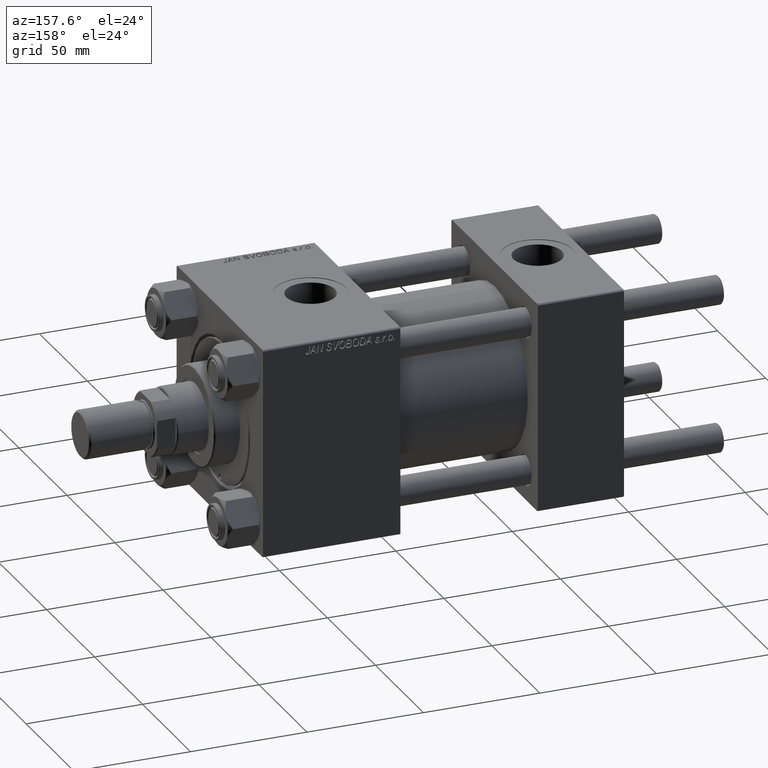
[diagram: clean part render]
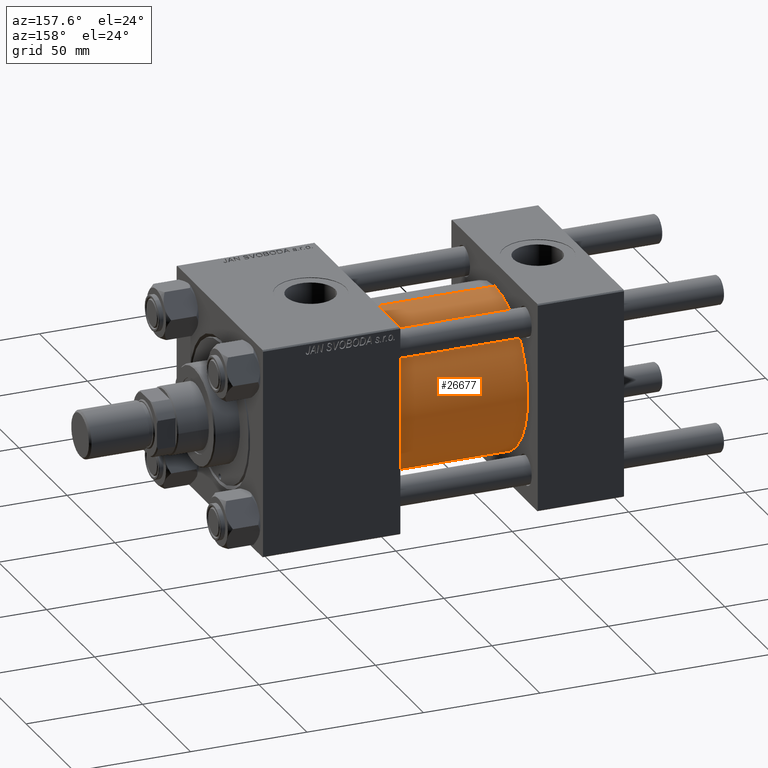
[diagram: same view with one face highlighted and labeled with its STEP entity id]
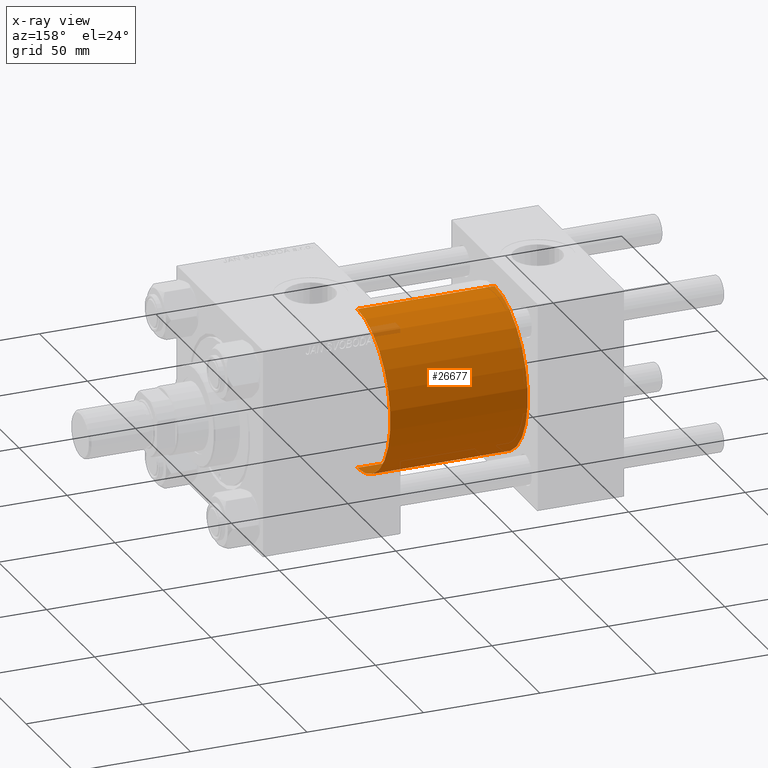
[diagram: x-ray of the same camera — body ghosted, the highlighted face saturated]
A machine part, auxiliary view. The second image highlights one B-rep face of the part: STEP entity #26677.
The next image is the same camera in x-ray: the body ghosted, the highlighted face saturated — about 2% of this face is hidden behind the body in this view.
In plain terms, the highlighted cylindrical surface (partial cylindrical patch) has radius 34.5 mm, axis along (-1, -0, -0).
Its self-contained STEP definition (entity closure, byte-faithful):
#1031 = EDGE_CURVE ( 'NONE', #12764, #3723, #1317, .T. ) ;
#1317 = LINE ( 'NONE', #17606, #29880 ) ;
#2573 = AXIS2_PLACEMENT_3D ( 'NONE', #41344, #29864, #10514 ) ;
#3723 = VERTEX_POINT ( 'NONE', #30149 ) ;
#3941 = CIRCLE ( 'NONE', #33225, 34.49999999999999289 ) ;
#6200 = CARTESIAN_POINT ( 'NONE',  ( 96.00000000000000000, 0.000000000000000000, 34.49999999999999289 ) ) ;
#6658 = CIRCLE ( 'NONE', #2573, 34.49999999999999289 ) ;
#7942 = EDGE_CURVE ( 'NONE', #21587, #12764, #3941, .T. ) ;
#9681 = CARTESIAN_POINT ( 'NONE',  ( 96.00000000000000000, 4.225031457058367344E-15, -34.49999999999999289 ) ) ;
#9899 = DIRECTION ( 'NONE',  ( 1.000000000000000000, 0.000000000000000000, 0.000000000000000000 ) ) ;
#10514 = DIRECTION ( 'NONE',  ( 0.000000000000000000, 0.000000000000000000, 1.000000000000000000 ) ) ;
#12220 = DIRECTION ( 'NONE',  ( -1.000000000000000000, -0.000000000000000000, -0.000000000000000000 ) ) ;
#12764 = VERTEX_POINT ( 'NONE', #6200 ) ;
#13382 = EDGE_CURVE ( 'NONE', #21587, #13958, #15538, .T. ) ;
#13958 = VERTEX_POINT ( 'NONE', #21183 ) ;
#15189 = VECTOR ( 'NONE', #12220, 1000.000000000000000 ) ;
#15538 = LINE ( 'NONE', #39470, #15189 ) ;
#17368 = DIRECTION ( 'NONE',  ( -1.000000000000000000, -0.000000000000000000, -0.000000000000000000 ) ) ;
#17606 = CARTESIAN_POINT ( 'NONE',  ( 96.00000000000000000, 0.000000000000000000, 34.49999999999999289 ) ) ;
#18178 = CARTESIAN_POINT ( 'NONE',  ( 96.00000000000000000, 0.000000000000000000, 0.000000000000000000 ) ) ;
#18281 = ORIENTED_EDGE ( 'NONE', *, *, #7942, .F. ) ;
#21183 = CARTESIAN_POINT ( 'NONE',  ( 37.00000000000000000, 4.225031457058367344E-15, -34.49999999999999289 ) ) ;
#21587 = VERTEX_POINT ( 'NONE', #9681 ) ;
#26677 = ADVANCED_FACE ( 'NONE', ( #49284 ), #28651, .T. ) ;
#27201 = ORIENTED_EDGE ( 'NONE', *, *, #29045, .T. ) ;
#28651 = CYLINDRICAL_SURFACE ( 'NONE', #29346, 34.49999999999999289 ) ;
#29045 = EDGE_CURVE ( 'NONE', #13958, #3723, #6658, .T. ) ;
#29346 = AXIS2_PLACEMENT_3D ( 'NONE', #18178, #33731, #48794 ) ;
#29864 = DIRECTION ( 'NONE',  ( 1.000000000000000000, -0.000000000000000000, 0.000000000000000000 ) ) ;
#29880 = VECTOR ( 'NONE', #17368, 1000.000000000000000 ) ;
#30149 = CARTESIAN_POINT ( 'NONE',  ( 37.00000000000000000, 0.000000000000000000, 34.49999999999999289 ) ) ;
#33225 = AXIS2_PLACEMENT_3D ( 'NONE', #44528, #9899, #36894 ) ;
#33731 = DIRECTION ( 'NONE',  ( -1.000000000000000000, -0.000000000000000000, -0.000000000000000000 ) ) ;
#34831 = EDGE_LOOP ( 'NONE', ( #18281, #44442, #27201, #41306 ) ) ;
#36894 = DIRECTION ( 'NONE',  ( 0.000000000000000000, 0.000000000000000000, -1.000000000000000000 ) ) ;
#39470 = CARTESIAN_POINT ( 'NONE',  ( 96.00000000000000000, 4.225031457058367344E-15, -34.49999999999999289 ) ) ;
#41306 = ORIENTED_EDGE ( 'NONE', *, *, #1031, .F. ) ;
#41344 = CARTESIAN_POINT ( 'NONE',  ( 37.00000000000000000, 0.000000000000000000, 0.000000000000000000 ) ) ;
#44442 = ORIENTED_EDGE ( 'NONE', *, *, #13382, .T. ) ;
#44528 = CARTESIAN_POINT ( 'NONE',  ( 96.00000000000000000, 0.000000000000000000, 0.000000000000000000 ) ) ;
#48794 = DIRECTION ( 'NONE',  ( 0.000000000000000000, 0.000000000000000000, 1.000000000000000000 ) ) ;
#49284 = FACE_OUTER_BOUND ( 'NONE', #34831, .T. ) ;